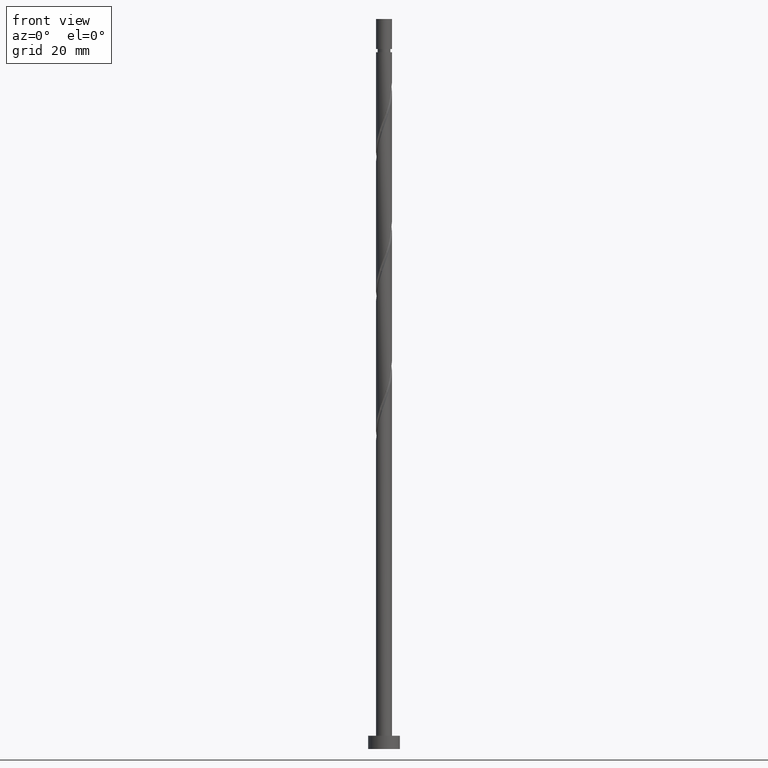
[diagram: clean part render]
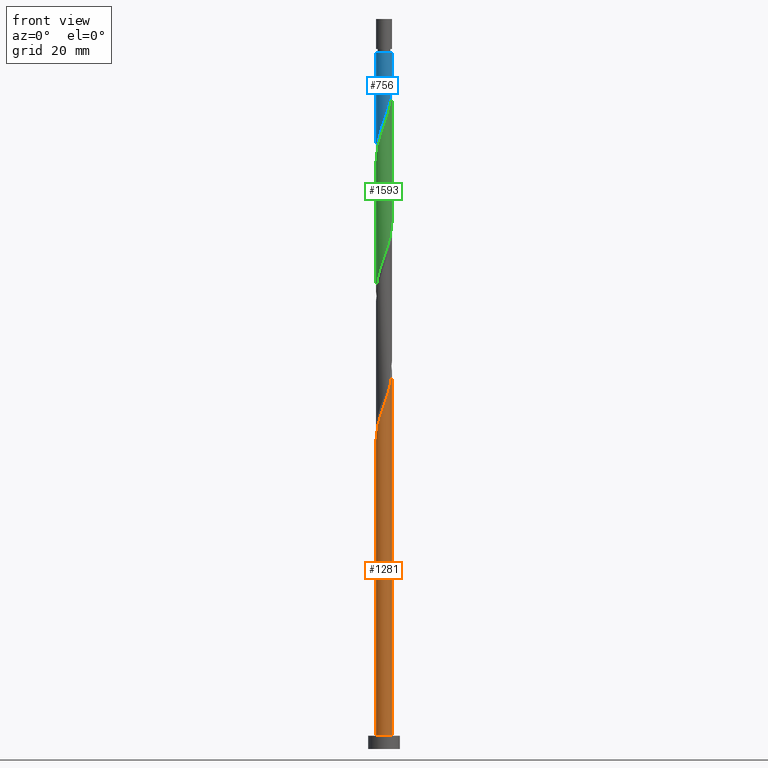
[diagram: same view with three faces highlighted in distinct colors, each labeled with its STEP entity id]
A machine part, front view with three faces highlighted in distinct colors.
Their STEP definitions:

[orange] entity #1281 — the highlighted cylindrical surface (edge-blend (fillet) strip) has radius 3 mm, axis along (-0, -0, -1).
#6 = EDGE_CURVE ( 'NONE', #752, #224, #465, .T. ) ;
#47 = CARTESIAN_POINT ( 'NONE',  ( -2.185491920847155267, -2.082758216016309838, 122.7794641503445519 ) ) ;
#55 = CARTESIAN_POINT ( 'NONE',  ( 0.9282509055702992118, -2.872735104178516075, 132.1544641503445234 ) ) ;
#62 = CARTESIAN_POINT ( 'NONE',  ( -3.000000000000004441, -0.3015113445777637957, 117.2557181514020641 ) ) ;
#102 = CARTESIAN_POINT ( 'NONE',  ( 3.000000000000004441, -0.03609869149916286601, 142.5670843842134730 ) ) ;
#192 = CARTESIAN_POINT ( 'NONE',  ( -0.07218693100826442666, -2.999131382082425468, 129.3419641503445803 ) ) ;
#224 = VERTEX_POINT ( 'NONE', #1802 ) ;
#232 = DIRECTION ( 'NONE',  ( 0.000000000000000000, 0.000000000000000000, 1.000000000000000000 ) ) ;
#243 = CARTESIAN_POINT ( 'NONE',  ( 0.000000000000000000, 0.000000000000000000, 5.000000000000000000 ) ) ;
#250 = CARTESIAN_POINT ( 'NONE',  ( -3.000000000000000444, 0.000000000000000000, 275.0000000000000000 ) ) ;
#321 = CARTESIAN_POINT ( 'NONE',  ( -2.594154378914896419, -1.544221415739432723, 120.9044641503445376 ) ) ;
#343 = CARTESIAN_POINT ( 'NONE',  ( -2.733444741546707579, -1.236236160654866634, 119.9669641503445803 ) ) ;
#351 = CARTESIAN_POINT ( 'NONE',  ( -3.000000000000005329, 4.253845453634912213E-16, 116.4174470724384918 ) ) ;
#382 = DIRECTION ( 'NONE',  ( 1.000000000000000000, 0.000000000000000000, 0.000000000000000000 ) ) ;
#415 = VERTEX_POINT ( 'NONE', #1701 ) ;
#439 = EDGE_LOOP ( 'NONE', ( #1056, #1351, #1287, #934 ) ) ;
#465 = LINE ( 'NONE', #783, #1273 ) ;
#466 = CARTESIAN_POINT ( 'NONE',  ( 2.082758216016309838, -2.185491920847155267, 135.9044641503445234 ) ) ;
#485 = CARTESIAN_POINT ( 'NONE',  ( -1.926365846447889885, -2.299807519258761701, 123.7169641503445661 ) ) ;
#525 = CARTESIAN_POINT ( 'NONE',  ( 3.000000000000005329, -8.433062039662193626E-16, 142.6674470724385344 ) ) ;
#548 = CARTESIAN_POINT ( 'NONE',  ( 2.990997868343356902, -0.4101078809741744990, 141.5294641503445803 ) ) ;
#568 = LINE ( 'NONE', #250, #1507 ) ;
#593 = CYLINDRICAL_SURFACE ( 'NONE', #855, 3.000000000000000444 ) ;
#606 = EDGE_CURVE ( 'NONE', #1149, #415, #568, .T. ) ;
#665 = CARTESIAN_POINT ( 'NONE',  ( 1.544221415739432501, -2.594154378914896419, 134.0294641503445234 ) ) ;
#697 = CARTESIAN_POINT ( 'NONE',  ( 2.999131382082425468, -0.07218693100826460707, 142.4669641503446087 ) ) ;
#710 = CARTESIAN_POINT ( 'NONE',  ( 2.907873793385206351, -0.7377465701333739689, 140.5919641503445519 ) ) ;
#752 = VERTEX_POINT ( 'NONE', #525 ) ;
#753 = CARTESIAN_POINT ( 'NONE',  ( 0.000000000000000000, 0.000000000000000000, 275.0000000000000000 ) ) ;
#766 = AXIS2_PLACEMENT_3D ( 'NONE', #243, #232, #382 ) ;
#783 = CARTESIAN_POINT ( 'NONE',  ( 3.000000000000000444, 3.673940397442060361E-16, 275.0000000000000000 ) ) ;
#784 = CARTESIAN_POINT ( 'NONE',  ( -2.872735104178516075, -0.9282509055702994338, 119.0294641503445376 ) ) ;
#855 = AXIS2_PLACEMENT_3D ( 'NONE', #753, #912, #1047 ) ;
#896 = CIRCLE ( 'NONE', #766, 3.000000000000000444 ) ;
#912 = DIRECTION ( 'NONE',  ( -0.000000000000000000, -0.000000000000000000, -1.000000000000000000 ) ) ;
#934 = ORIENTED_EDGE ( 'NONE', *, *, #1891, .T. ) ;
#940 = CARTESIAN_POINT ( 'NONE',  ( -0.4101078809741744990, -2.990997868343356902, 128.4044641503445519 ) ) ;
#954 = CARTESIAN_POINT ( 'NONE',  ( -1.065385259292573217, -2.824749718427055800, 126.5294641503445234 ) ) ;
#963 = CARTESIAN_POINT ( 'NONE',  ( -2.940000000000004832, -0.5969924622639728451, 118.0919641503445519 ) ) ;
#984 = CARTESIAN_POINT ( 'NONE',  ( 2.824749718427055800, -1.065385259292573217, 139.6544641503445234 ) ) ;
#1019 =( BOUNDED_CURVE ( )  B_SPLINE_CURVE ( 2, ( #351, #62, #963, #784, #343, #321, #1236, #47, #485, #1090, #1525, #954, #1532, #940, #192, #1244, #1829, #55, #1546, #665, #1261, #466, #1444, #1883, #1584, #984, #710, #548, #697, #102, #1420 ),
 .UNSPECIFIED., .F., .T. ) 
 B_SPLINE_CURVE_WITH_KNOTS ( ( 3, 2, 2, 2, 2, 2, 2, 2, 2, 2, 2, 2, 2, 2, 2, 3 ),
 ( 0.05453034012992208357, 0.06250000000000000000, 0.07142857142857139685, 0.08035714285714290472, 0.08928571428571430157, 0.09821428571428569843, 0.1071428571428570953, 0.1160714285714286031, 0.1250000000000000000, 0.1339285714285713969, 0.1428571428571429047, 0.1517857142857143016, 0.1607142857142856984, 0.1696428571428570953, 0.1785714285714286031, 0.1795303401299223334 ),
 .UNSPECIFIED. ) 
 CURVE ( )  GEOMETRIC_REPRESENTATION_ITEM ( )  RATIONAL_B_SPLINE_CURVE ( ( 0.9079949616362126275, 0.9039886423360758982, 0.9090909090909424783, 0.9033747362666175729, 0.9090909090909424783, 0.9033747362666175729, 0.9090909090909424783, 0.9033747362666175729, 0.9090909090909424783, 0.9033747362666175729, 0.9090909090909424783, 0.9033747362666175729, 0.9090909090909424783, 0.9033747362666175729, 0.9090909090909424783, 0.9033747362666175729, 0.9090909090909424783, 0.9033747362666175729, 0.9090909090909424783, 0.9033747362666175729, 0.9090909090909424783, 0.9033747362666175729, 0.9090909090909424783, 0.9033747362666175729, 0.9090909090909424783, 0.9033747362666175729, 0.9090909090909424783, 0.9033747362666175729, 0.9090909090909424783, 0.9084770030214841530, 0.9079949616362124054 ) ) 
 REPRESENTATION_ITEM ( '' )  );
#1028 = FACE_OUTER_BOUND ( 'NONE', #439, .T. ) ;
#1047 = DIRECTION ( 'NONE',  ( -1.000000000000000000, 0.000000000000000000, 0.000000000000000000 ) ) ;
#1056 = ORIENTED_EDGE ( 'NONE', *, *, #6, .F. ) ;
#1090 = CARTESIAN_POINT ( 'NONE',  ( -1.667239772048623392, -2.516856822501209567, 124.6544641503445234 ) ) ;
#1149 = VERTEX_POINT ( 'NONE', #1720 ) ;
#1203 = DIRECTION ( 'NONE',  ( -0.000000000000000000, -0.000000000000000000, -1.000000000000000000 ) ) ;
#1236 = CARTESIAN_POINT ( 'NONE',  ( -2.389823149881026065, -1.813489815877872280, 121.8419641503445519 ) ) ;
#1244 = CARTESIAN_POINT ( 'NONE',  ( 0.2657340189576455902, -3.007264895821491812, 130.2794641503445234 ) ) ;
#1261 = CARTESIAN_POINT ( 'NONE',  ( 1.813489815877872058, -2.389823149881026065, 134.9669641503445234 ) ) ;
#1273 = VECTOR ( 'NONE', #1203, 1000.000000000000000 ) ;
#1281 = ADVANCED_FACE ( 'NONE', ( #1028 ), #593, .T. ) ;
#1287 = ORIENTED_EDGE ( 'NONE', *, *, #606, .T. ) ;
#1351 = ORIENTED_EDGE ( 'NONE', *, *, #1718, .F. ) ;
#1420 = CARTESIAN_POINT ( 'NONE',  ( 3.000000000000005329, -8.433062039662194613E-16, 142.6674470724385344 ) ) ;
#1444 = CARTESIAN_POINT ( 'NONE',  ( 2.299807519258761257, -1.926365846447889885, 136.8419641503445803 ) ) ;
#1507 = VECTOR ( 'NONE', #1892, 1000.000000000000000 ) ;
#1525 = CARTESIAN_POINT ( 'NONE',  ( -1.366312515670598415, -2.670803270464133128, 125.5919641503445661 ) ) ;
#1532 = CARTESIAN_POINT ( 'NONE',  ( -0.7377465701333737469, -2.907873793385206351, 127.4669641503445519 ) ) ;
#1546 = CARTESIAN_POINT ( 'NONE',  ( 1.236236160654866634, -2.733444741546707579, 133.0919641503445803 ) ) ;
#1584 = CARTESIAN_POINT ( 'NONE',  ( 2.670803270464133128, -1.366312515670599081, 138.7169641503446087 ) ) ;
#1701 = CARTESIAN_POINT ( 'NONE',  ( -3.000000000000000444, 0.000000000000000000, 5.000000000000000000 ) ) ;
#1718 = EDGE_CURVE ( 'NONE', #1149, #752, #1019, .T. ) ;
#1720 = CARTESIAN_POINT ( 'NONE',  ( -3.000000000000005329, 4.253845453634912213E-16, 116.4174470724384918 ) ) ;
#1802 = CARTESIAN_POINT ( 'NONE',  ( 3.000000000000000444, 3.673940397442060361E-16, 5.000000000000000000 ) ) ;
#1829 = CARTESIAN_POINT ( 'NONE',  ( 0.5969924622639726230, -2.940000000000004832, 131.2169641503445234 ) ) ;
#1883 = CARTESIAN_POINT ( 'NONE',  ( 2.516856822501209567, -1.667239772048623614, 137.7794641503445519 ) ) ;
#1891 = EDGE_CURVE ( 'NONE', #415, #224, #896, .T. ) ;
#1892 = DIRECTION ( 'NONE',  ( -0.000000000000000000, -0.000000000000000000, -1.000000000000000000 ) ) ;

[blue] entity #756 — the highlighted cylindrical surface (edge-blend (fillet) strip) has radius 3 mm, axis along (-0, -0, -1).
#7 = CARTESIAN_POINT ( 'NONE',  ( 2.185491920847151714, -2.082758216016308506, 244.6544641503445803 ) ) ;
#36 = CARTESIAN_POINT ( 'NONE',  ( -3.000000000000000000, -0.03609869149917129677, 224.8668439164756592 ) ) ;
#66 =( BOUNDED_CURVE ( )  B_SPLINE_CURVE ( 2, ( #1709, #1514, #1817, #482, #470, #454, #1635, #7, #1500, #780, #328, #1070, #1529, #167, #1061, #796, #1647, #639, #1254, #1109, #203, #679, #1118, #668, #1848, #527, #976, #1640, #877, #36, #632 ),
 .UNSPECIFIED., .F., .T. ) 
 B_SPLINE_CURVE_WITH_KNOTS ( ( 3, 2, 2, 2, 2, 2, 2, 2, 2, 2, 2, 2, 2, 2, 2, 3 ),
 ( 0.3045303401299219725, 0.3125000000000000000, 0.3214285714285714524, 0.3303571428571428492, 0.3392857142857143016, 0.3482142857142856984, 0.3571428571428571508, 0.3660714285714285476, 0.3750000000000000000, 0.3839285714285714524, 0.3928571428571428492, 0.4017857142857143016, 0.4107142857142856984, 0.4196428571428571508, 0.4285714285714285476, 0.4295303401299220281 ),
 .UNSPECIFIED. ) 
 CURVE ( )  GEOMETRIC_REPRESENTATION_ITEM ( )  RATIONAL_B_SPLINE_CURVE ( ( 0.9079949616362069653, 0.9039886423360697920, 0.9090909090909368162, 0.9033747362666115777, 0.9090909090909368162, 0.9033747362666115777, 0.9090909090909368162, 0.9033747362666115777, 0.9090909090909368162, 0.9033747362666115777, 0.9090909090909368162, 0.9033747362666115777, 0.9090909090909368162, 0.9033747362666115777, 0.9090909090909368162, 0.9033747362666115777, 0.9090909090909368162, 0.9033747362666115777, 0.9090909090909368162, 0.9033747362666115777, 0.9090909090909368162, 0.9033747362666115777, 0.9090909090909368162, 0.9033747362666115777, 0.9090909090909368162, 0.9033747362666115777, 0.9090909090909368162, 0.9033747362666115777, 0.9090909090909368162, 0.9084770030214786019, 0.9079949616362068543 ) ) 
 REPRESENTATION_ITEM ( '' )  );
#84 = ORIENTED_EDGE ( 'NONE', *, *, #597, .T. ) ;
#133 = VERTEX_POINT ( 'NONE', #625 ) ;
#167 = CARTESIAN_POINT ( 'NONE',  ( 0.4101078809741727782, -2.990997868343352906, 239.0294641503445803 ) ) ;
#203 = CARTESIAN_POINT ( 'NONE',  ( -1.813489815877870504, -2.389823149881022069, 232.4669641503445519 ) ) ;
#207 = DIRECTION ( 'NONE',  ( -1.000000000000000000, 0.000000000000000000, 0.000000000000000000 ) ) ;
#254 = ORIENTED_EDGE ( 'NONE', *, *, #835, .F. ) ;
#274 = LINE ( 'NONE', #426, #340 ) ;
#284 = VERTEX_POINT ( 'NONE', #320 ) ;
#320 = CARTESIAN_POINT ( 'NONE',  ( 3.000000000000000000, -1.903036123994578005E-16, 251.0164812282506546 ) ) ;
#328 = CARTESIAN_POINT ( 'NONE',  ( 1.366312515670595085, -2.670803270464130019, 241.8419641503444382 ) ) ;
#340 = VECTOR ( 'NONE', #924, 1000.000000000000000 ) ;
#408 = DIRECTION ( 'NONE',  ( -0.000000000000000000, -0.000000000000000000, -1.000000000000000000 ) ) ;
#426 = CARTESIAN_POINT ( 'NONE',  ( 3.000000000000000444, 3.673940397442060361E-16, 275.0000000000000000 ) ) ;
#454 = CARTESIAN_POINT ( 'NONE',  ( 2.594154378914893755, -1.544221415739432057, 246.5294641503445803 ) ) ;
#470 = CARTESIAN_POINT ( 'NONE',  ( 2.733444741546703138, -1.236236160654866190, 247.4669641503445234 ) ) ;
#482 = CARTESIAN_POINT ( 'NONE',  ( 2.872735104178513410, -0.9282509055702995449, 248.4044641503445519 ) ) ;
#527 = CARTESIAN_POINT ( 'NONE',  ( -2.824749718427052692, -1.065385259292570552, 227.7794641503445803 ) ) ;
#538 = VERTEX_POINT ( 'NONE', #1242 ) ;
#539 = AXIS2_PLACEMENT_3D ( 'NONE', #1283, #408, #207 ) ;
#587 = CARTESIAN_POINT ( 'NONE',  ( -3.000000000000000444, 0.000000000000000000, 275.0000000000000000 ) ) ;
#597 = EDGE_CURVE ( 'NONE', #1914, #538, #1596, .T. ) ;
#604 = CIRCLE ( 'NONE', #698, 2.999999999999980460 ) ;
#625 = CARTESIAN_POINT ( 'NONE',  ( 2.999999999999980460, 3.673940397442048035E-16, 262.4669641503445519 ) ) ;
#632 = CARTESIAN_POINT ( 'NONE',  ( -3.000000000000000444, 4.056078954474719239E-15, 224.7664812282505693 ) ) ;
#639 = CARTESIAN_POINT ( 'NONE',  ( -0.9282509055702994338, -2.872735104178513410, 235.2794641503445234 ) ) ;
#668 = CARTESIAN_POINT ( 'NONE',  ( -2.516856822501207791, -1.667239772048620283, 229.6544641503445519 ) ) ;
#679 = CARTESIAN_POINT ( 'NONE',  ( -2.082758216016308506, -2.185491920847151714, 231.5294641503444950 ) ) ;
#698 = AXIS2_PLACEMENT_3D ( 'NONE', #825, #1410, #1124 ) ;
#738 = CARTESIAN_POINT ( 'NONE',  ( -2.999999999999980460, 0.000000000000000000, 262.4669641503445519 ) ) ;
#740 = EDGE_LOOP ( 'NONE', ( #837, #1670, #84, #254 ) ) ;
#756 = ADVANCED_FACE ( 'NONE', ( #1889 ), #1161, .T. ) ;
#780 = CARTESIAN_POINT ( 'NONE',  ( 1.667239772048620283, -2.516856822501207791, 242.7794641503445519 ) ) ;
#796 = CARTESIAN_POINT ( 'NONE',  ( -0.2657340189576463674, -3.007264895821488260, 237.1544641503445519 ) ) ;
#825 = CARTESIAN_POINT ( 'NONE',  ( 0.000000000000000000, 0.000000000000000000, 262.4669641503445519 ) ) ;
#835 = EDGE_CURVE ( 'NONE', #284, #538, #66, .T. ) ;
#837 = ORIENTED_EDGE ( 'NONE', *, *, #1553, .F. ) ;
#877 = CARTESIAN_POINT ( 'NONE',  ( -2.999131382082420583, -0.07218693100826335807, 224.9669641503444950 ) ) ;
#924 = DIRECTION ( 'NONE',  ( -0.000000000000000000, -0.000000000000000000, -1.000000000000000000 ) ) ;
#976 = CARTESIAN_POINT ( 'NONE',  ( -2.907873793385203243, -0.7377465701333718595, 226.8419641503445803 ) ) ;
#1061 = CARTESIAN_POINT ( 'NONE',  ( 0.07218693100826327480, -2.999131382082420583, 238.0919641503444950 ) ) ;
#1070 = CARTESIAN_POINT ( 'NONE',  ( 1.065385259292570552, -2.824749718427052692, 240.9044641503445803 ) ) ;
#1109 = CARTESIAN_POINT ( 'NONE',  ( -1.544221415739432057, -2.594154378914893755, 233.4044641503445803 ) ) ;
#1118 = CARTESIAN_POINT ( 'NONE',  ( -2.299807519258758148, -1.926365846447885222, 230.5919641503445803 ) ) ;
#1124 = DIRECTION ( 'NONE',  ( -1.000000000000000000, 0.000000000000000000, 0.000000000000000000 ) ) ;
#1161 = CYLINDRICAL_SURFACE ( 'NONE', #539, 3.000000000000000444 ) ;
#1242 = CARTESIAN_POINT ( 'NONE',  ( -3.000000000000000444, 4.056078954474719239E-15, 224.7664812282505409 ) ) ;
#1254 = CARTESIAN_POINT ( 'NONE',  ( -1.236236160654865524, -2.733444741546703138, 234.3419641503445519 ) ) ;
#1283 = CARTESIAN_POINT ( 'NONE',  ( 0.000000000000000000, 0.000000000000000000, 275.0000000000000000 ) ) ;
#1410 = DIRECTION ( 'NONE',  ( -0.000000000000000000, -0.000000000000000000, -1.000000000000000000 ) ) ;
#1430 = DIRECTION ( 'NONE',  ( -0.000000000000000000, -0.000000000000000000, -1.000000000000000000 ) ) ;
#1500 = CARTESIAN_POINT ( 'NONE',  ( 1.926365846447885222, -2.299807519258758592, 243.7169641503445234 ) ) ;
#1514 = CARTESIAN_POINT ( 'NONE',  ( 3.000000000000000888, -0.3015113445777622414, 250.1782101492870254 ) ) ;
#1529 = CARTESIAN_POINT ( 'NONE',  ( 0.7377465701333717485, -2.907873793385203243, 239.9669641503445803 ) ) ;
#1553 = EDGE_CURVE ( 'NONE', #133, #284, #274, .T. ) ;
#1596 = LINE ( 'NONE', #587, #1809 ) ;
#1635 = CARTESIAN_POINT ( 'NONE',  ( 2.389823149881022069, -1.813489815877870504, 245.5919641503445234 ) ) ;
#1640 = CARTESIAN_POINT ( 'NONE',  ( -2.990997868343352906, -0.4101078809741730002, 225.9044641503445519 ) ) ;
#1647 = CARTESIAN_POINT ( 'NONE',  ( -0.5969924622639728451, -2.940000000000000835, 236.2169641503445519 ) ) ;
#1670 = ORIENTED_EDGE ( 'NONE', *, *, #1908, .T. ) ;
#1709 = CARTESIAN_POINT ( 'NONE',  ( 3.000000000000000000, -1.903036123994578005E-16, 251.0164812282506546 ) ) ;
#1809 = VECTOR ( 'NONE', #1430, 1000.000000000000000 ) ;
#1817 = CARTESIAN_POINT ( 'NONE',  ( 2.940000000000000835, -0.5969924622639731782, 249.3419641503445519 ) ) ;
#1848 = CARTESIAN_POINT ( 'NONE',  ( -2.670803270464130019, -1.366312515670595751, 228.7169641503445234 ) ) ;
#1889 = FACE_OUTER_BOUND ( 'NONE', #740, .T. ) ;
#1908 = EDGE_CURVE ( 'NONE', #133, #1914, #604, .T. ) ;
#1914 = VERTEX_POINT ( 'NONE', #738 ) ;

[green] entity #1593 — the highlighted cylindrical surface (edge-blend (fillet) strip) has radius 3 mm, axis along (-0, -0, -1).
#54 = CARTESIAN_POINT ( 'NONE',  ( -0.7377465701333737469, -2.907873793385206351, 232.4669641503446087 ) ) ;
#61 = CARTESIAN_POINT ( 'NONE',  ( -3.000000000000004441, -3.294864504876865949E-15, 221.4174470724384776 ) ) ;
#72 = CARTESIAN_POINT ( 'NONE',  ( -0.07218693100826442666, -2.999131382082425468, 234.3419641503445803 ) ) ;
#80 = CARTESIAN_POINT ( 'NONE',  ( 3.000000000000005329, -0.03609869149917228903, 247.5670843842134161 ) ) ;
#124 = CARTESIAN_POINT ( 'NONE',  ( -3.000000000000000444, 0.000000000000000000, 275.0000000000000000 ) ) ;
#144 = DIRECTION ( 'NONE',  ( -0.000000000000000000, -0.000000000000000000, -1.000000000000000000 ) ) ;
#209 = CARTESIAN_POINT ( 'NONE',  ( -2.185491920847155267, -2.082758216016309838, 227.7794641503445234 ) ) ;
#221 = CARTESIAN_POINT ( 'NONE',  ( -2.594154378914896419, -1.544221415739432723, 225.9044641503445519 ) ) ;
#227 = CARTESIAN_POINT ( 'NONE',  ( 1.065385259292570552, -2.824749718427052692, 188.4044641503445519 ) ) ;
#231 = CARTESIAN_POINT ( 'NONE',  ( 2.299807519258761257, -1.926365846447889885, 241.8419641503445519 ) ) ;
#257 = CARTESIAN_POINT ( 'NONE',  ( 2.594154378914893755, -1.544221415739432057, 194.0294641503445519 ) ) ;
#260 =( BOUNDED_CURVE ( )  B_SPLINE_CURVE ( 2, ( #1334, #1778, #1918, #296, #1888, #257, #1312, #1062, #508, #491, #951, #227, #848, #1415, #704, #1643, #915, #1549, #1206, #308, #1335, #1569, #1422, #1590, #626, #1224, #1814, #322, #1190, #1468, #1121 ),
 .UNSPECIFIED., .F., .T. ) 
 B_SPLINE_CURVE_WITH_KNOTS ( ( 3, 2, 2, 2, 2, 2, 2, 2, 2, 2, 2, 2, 2, 2, 2, 3 ),
 ( 0.5545303401299219725, 0.5625000000000000000, 0.5714285714285713969, 0.5803571428571429047, 0.5892857142857143016, 0.5982142857142856984, 0.6071428571428570953, 0.6160714285714286031, 0.6250000000000000000, 0.6339285714285713969, 0.6428571428571429047, 0.6517857142857143016, 0.6607142857142856984, 0.6696428571428570953, 0.6785714285714286031, 0.6795303401299221946 ),
 .UNSPECIFIED. ) 
 CURVE ( )  GEOMETRIC_REPRESENTATION_ITEM ( )  RATIONAL_B_SPLINE_CURVE ( ( 0.9079949616362070763, 0.9039886423360699030, 0.9090909090909368162, 0.9033747362666115777, 0.9090909090909368162, 0.9033747362666115777, 0.9090909090909368162, 0.9033747362666115777, 0.9090909090909368162, 0.9033747362666115777, 0.9090909090909368162, 0.9033747362666115777, 0.9090909090909368162, 0.9033747362666115777, 0.9090909090909368162, 0.9033747362666115777, 0.9090909090909368162, 0.9033747362666115777, 0.9090909090909368162, 0.9033747362666115777, 0.9090909090909368162, 0.9033747362666115777, 0.9090909090909368162, 0.9033747362666115777, 0.9090909090909368162, 0.9033747362666115777, 0.9090909090909368162, 0.9033747362666115777, 0.9090909090909368162, 0.9084770030214784908, 0.9079949616362067433 ) ) 
 REPRESENTATION_ITEM ( '' )  );
#292 = CARTESIAN_POINT ( 'NONE',  ( 3.000000000000000444, 3.673940397442060361E-16, 275.0000000000000000 ) ) ;
#295 = DIRECTION ( 'NONE',  ( -0.000000000000000000, -0.000000000000000000, -1.000000000000000000 ) ) ;
#296 = CARTESIAN_POINT ( 'NONE',  ( 2.872735104178513410, -0.9282509055702995449, 195.9044641503445803 ) ) ;
#305 = ORIENTED_EDGE ( 'NONE', *, *, #459, .F. ) ;
#306 = DIRECTION ( 'NONE',  ( -0.000000000000000000, -0.000000000000000000, -1.000000000000000000 ) ) ;
#308 = CARTESIAN_POINT ( 'NONE',  ( -1.544221415739432057, -2.594154378914893755, 180.9044641503445803 ) ) ;
#322 = CARTESIAN_POINT ( 'NONE',  ( -2.990997868343352906, -0.4101078809741730002, 173.4044641503445519 ) ) ;
#371 = CARTESIAN_POINT ( 'NONE',  ( 2.907873793385206351, -0.7377465701333739689, 245.5919641503446087 ) ) ;
#375 = VECTOR ( 'NONE', #295, 1000.000000000000000 ) ;
#381 = CARTESIAN_POINT ( 'NONE',  ( 2.670803270464133128, -1.366312515670599081, 243.7169641503445803 ) ) ;
#448 = VERTEX_POINT ( 'NONE', #1691 ) ;
#459 = EDGE_CURVE ( 'NONE', #1736, #785, #1624, .T. ) ;
#491 = CARTESIAN_POINT ( 'NONE',  ( 1.667239772048620283, -2.516856822501207791, 190.2794641503445234 ) ) ;
#508 = CARTESIAN_POINT ( 'NONE',  ( 1.926365846447885222, -2.299807519258758592, 191.2169641503445234 ) ) ;
#511 = CARTESIAN_POINT ( 'NONE',  ( -3.000000000000004441, -3.294864504876865949E-15, 221.4174470724384776 ) ) ;
#521 = CARTESIAN_POINT ( 'NONE',  ( 0.9282509055702992118, -2.872735104178516075, 237.1544641503445519 ) ) ;
#534 = CARTESIAN_POINT ( 'NONE',  ( -1.065385259292573217, -2.824749718427055800, 231.5294641503444950 ) ) ;
#626 = CARTESIAN_POINT ( 'NONE',  ( -2.670803270464130019, -1.366312515670595751, 176.2169641503445234 ) ) ;
#664 = CARTESIAN_POINT ( 'NONE',  ( -2.872735104178516075, -0.9282509055702994338, 224.0294641503444950 ) ) ;
#675 = CARTESIAN_POINT ( 'NONE',  ( -1.926365846447889885, -2.299807519258761701, 228.7169641503445803 ) ) ;
#684 = CARTESIAN_POINT ( 'NONE',  ( 2.082758216016309838, -2.185491920847155267, 240.9044641503445234 ) ) ;
#695 = CARTESIAN_POINT ( 'NONE',  ( 1.236236160654866634, -2.733444741546707579, 238.0919641503445234 ) ) ;
#704 = CARTESIAN_POINT ( 'NONE',  ( 0.07218693100826327480, -2.999131382082420583, 185.5919641503445519 ) ) ;
#705 = EDGE_CURVE ( 'NONE', #1736, #1485, #1457, .T. ) ;
#785 = VERTEX_POINT ( 'NONE', #1141 ) ;
#824 = CARTESIAN_POINT ( 'NONE',  ( -1.366312515670598415, -2.670803270464133128, 230.5919641503446371 ) ) ;
#848 = CARTESIAN_POINT ( 'NONE',  ( 0.7377465701333717485, -2.907873793385203243, 187.4669641503445234 ) ) ;
#882 = CARTESIAN_POINT ( 'NONE',  ( -2.999999999999999556, 3.209041307128111581E-16, 172.2664812282505977 ) ) ;
#915 = CARTESIAN_POINT ( 'NONE',  ( -0.5969924622639728451, -2.940000000000000835, 183.7169641503445234 ) ) ;
#949 = AXIS2_PLACEMENT_3D ( 'NONE', #1618, #306, #1479 ) ;
#951 = CARTESIAN_POINT ( 'NONE',  ( 1.366312515670595085, -2.670803270464130019, 189.3419641503445519 ) ) ;
#972 = CARTESIAN_POINT ( 'NONE',  ( -2.733444741546707579, -1.236236160654866634, 224.9669641503445803 ) ) ;
#975 = EDGE_LOOP ( 'NONE', ( #1177, #305, #1548, #1446 ) ) ;
#983 = CARTESIAN_POINT ( 'NONE',  ( 2.999131382082425468, -0.07218693100826460707, 247.4669641503445519 ) ) ;
#1037 = CYLINDRICAL_SURFACE ( 'NONE', #949, 3.000000000000000444 ) ;
#1062 = CARTESIAN_POINT ( 'NONE',  ( 2.185491920847151714, -2.082758216016308506, 192.1544641503445803 ) ) ;
#1066 = EDGE_CURVE ( 'NONE', #448, #1485, #260, .T. ) ;
#1121 = CARTESIAN_POINT ( 'NONE',  ( -2.999999999999999556, 3.209041307128111088E-16, 172.2664812282506261 ) ) ;
#1123 = CARTESIAN_POINT ( 'NONE',  ( 2.824749718427055800, -1.065385259292573217, 244.6544641503444950 ) ) ;
#1133 = VECTOR ( 'NONE', #144, 1000.000000000000000 ) ;
#1135 = CARTESIAN_POINT ( 'NONE',  ( 2.990997868343356902, -0.4101078809741744990, 246.5294641503445519 ) ) ;
#1141 = CARTESIAN_POINT ( 'NONE',  ( 3.000000000000004441, 2.880674289654519495E-15, 247.6674470724384491 ) ) ;
#1177 = ORIENTED_EDGE ( 'NONE', *, *, #1211, .F. ) ;
#1190 = CARTESIAN_POINT ( 'NONE',  ( -2.999131382082420583, -0.07218693100826335807, 172.4669641503445519 ) ) ;
#1206 = CARTESIAN_POINT ( 'NONE',  ( -1.236236160654865524, -2.733444741546703138, 181.8419641503445234 ) ) ;
#1211 = EDGE_CURVE ( 'NONE', #785, #448, #1278, .T. ) ;
#1224 = CARTESIAN_POINT ( 'NONE',  ( -2.824749718427052692, -1.065385259292570552, 175.2794641503445234 ) ) ;
#1249 = CARTESIAN_POINT ( 'NONE',  ( 0.5969924622639726230, -2.940000000000004832, 236.2169641503446087 ) ) ;
#1275 = CARTESIAN_POINT ( 'NONE',  ( -2.940000000000004832, -0.5969924622639728451, 223.0919641503446087 ) ) ;
#1278 = LINE ( 'NONE', #292, #375 ) ;
#1312 = CARTESIAN_POINT ( 'NONE',  ( 2.389823149881022069, -1.813489815877870504, 193.0919641503445803 ) ) ;
#1331 = FACE_OUTER_BOUND ( 'NONE', #975, .T. ) ;
#1334 = CARTESIAN_POINT ( 'NONE',  ( 2.999999999999999556, -6.343453746648592363E-16, 198.5164812282506261 ) ) ;
#1335 = CARTESIAN_POINT ( 'NONE',  ( -1.813489815877870504, -2.389823149881022069, 179.9669641503445234 ) ) ;
#1390 = CARTESIAN_POINT ( 'NONE',  ( -3.000000000000003997, -0.3015113445777679035, 222.2557181514020499 ) ) ;
#1409 = CARTESIAN_POINT ( 'NONE',  ( -0.4101078809741744990, -2.990997868343356902, 233.4044641503445803 ) ) ;
#1415 = CARTESIAN_POINT ( 'NONE',  ( 0.4101078809741727782, -2.990997868343352906, 186.5294641503445803 ) ) ;
#1422 = CARTESIAN_POINT ( 'NONE',  ( -2.299807519258758148, -1.926365846447885222, 178.0919641503445519 ) ) ;
#1446 = ORIENTED_EDGE ( 'NONE', *, *, #1066, .F. ) ;
#1457 = LINE ( 'NONE', #124, #1133 ) ;
#1468 = CARTESIAN_POINT ( 'NONE',  ( -3.000000000000000000, -0.03609869149916689057, 172.3668439164756307 ) ) ;
#1479 = DIRECTION ( 'NONE',  ( -1.000000000000000000, 0.000000000000000000, 0.000000000000000000 ) ) ;
#1485 = VERTEX_POINT ( 'NONE', #882 ) ;
#1548 = ORIENTED_EDGE ( 'NONE', *, *, #705, .T. ) ;
#1549 = CARTESIAN_POINT ( 'NONE',  ( -0.9282509055702994338, -2.872735104178513410, 182.7794641503445519 ) ) ;
#1555 = CARTESIAN_POINT ( 'NONE',  ( -2.389823149881026065, -1.813489815877872280, 226.8419641503445803 ) ) ;
#1565 = CARTESIAN_POINT ( 'NONE',  ( 1.813489815877872058, -2.389823149881026065, 239.9669641503446087 ) ) ;
#1569 = CARTESIAN_POINT ( 'NONE',  ( -2.082758216016308506, -2.185491920847151714, 179.0294641503445519 ) ) ;
#1590 = CARTESIAN_POINT ( 'NONE',  ( -2.516856822501207791, -1.667239772048620283, 177.1544641503445234 ) ) ;
#1593 = ADVANCED_FACE ( 'NONE', ( #1331 ), #1037, .T. ) ;
#1618 = CARTESIAN_POINT ( 'NONE',  ( 0.000000000000000000, 0.000000000000000000, 275.0000000000000000 ) ) ;
#1624 =( BOUNDED_CURVE ( )  B_SPLINE_CURVE ( 2, ( #61, #1390, #1275, #664, #972, #221, #1555, #209, #675, #1862, #824, #534, #54, #1409, #72, #1854, #1249, #521, #695, #1711, #1565, #684, #231, #1834, #381, #1123, #371, #1135, #983, #80, #1724 ),
 .UNSPECIFIED., .F., .T. ) 
 B_SPLINE_CURVE_WITH_KNOTS ( ( 3, 2, 2, 2, 2, 2, 2, 2, 2, 2, 2, 2, 2, 2, 2, 3 ),
 ( 0.5545303401299221946, 0.5625000000000000000, 0.5714285714285713969, 0.5803571428571427937, 0.5892857142857143016, 0.5982142857142856984, 0.6071428571428572063, 0.6160714285714286031, 0.6250000000000000000, 0.6339285714285713969, 0.6428571428571427937, 0.6517857142857143016, 0.6607142857142856984, 0.6696428571428572063, 0.6785714285714286031, 0.6795303401299220836 ),
 .UNSPECIFIED. ) 
 CURVE ( )  GEOMETRIC_REPRESENTATION_ITEM ( )  RATIONAL_B_SPLINE_CURVE ( ( 0.9079949616362124054, 0.9039886423360758982, 0.9090909090909424783, 0.9033747362666175729, 0.9090909090909424783, 0.9033747362666175729, 0.9090909090909424783, 0.9033747362666175729, 0.9090909090909424783, 0.9033747362666175729, 0.9090909090909424783, 0.9033747362666175729, 0.9090909090909424783, 0.9033747362666175729, 0.9090909090909424783, 0.9033747362666175729, 0.9090909090909424783, 0.9033747362666175729, 0.9090909090909424783, 0.9033747362666175729, 0.9090909090909424783, 0.9033747362666175729, 0.9090909090909424783, 0.9033747362666175729, 0.9090909090909424783, 0.9033747362666175729, 0.9090909090909424783, 0.9033747362666175729, 0.9090909090909424783, 0.9084770030214842640, 0.9079949616362126275 ) ) 
 REPRESENTATION_ITEM ( '' )  );
#1643 = CARTESIAN_POINT ( 'NONE',  ( -0.2657340189576463674, -3.007264895821488260, 184.6544641503445234 ) ) ;
#1691 = CARTESIAN_POINT ( 'NONE',  ( 2.999999999999999556, -6.343453746648592363E-16, 198.5164812282506261 ) ) ;
#1711 = CARTESIAN_POINT ( 'NONE',  ( 1.544221415739432501, -2.594154378914896419, 239.0294641503445234 ) ) ;
#1724 = CARTESIAN_POINT ( 'NONE',  ( 3.000000000000004441, 2.880674289654519495E-15, 247.6674470724384491 ) ) ;
#1736 = VERTEX_POINT ( 'NONE', #511 ) ;
#1778 = CARTESIAN_POINT ( 'NONE',  ( 3.000000000000000888, -0.3015113445777603540, 197.6782101492870254 ) ) ;
#1814 = CARTESIAN_POINT ( 'NONE',  ( -2.907873793385203243, -0.7377465701333718595, 174.3419641503445519 ) ) ;
#1834 = CARTESIAN_POINT ( 'NONE',  ( 2.516856822501209567, -1.667239772048623614, 242.7794641503445519 ) ) ;
#1854 = CARTESIAN_POINT ( 'NONE',  ( 0.2657340189576455902, -3.007264895821491812, 235.2794641503444950 ) ) ;
#1862 = CARTESIAN_POINT ( 'NONE',  ( -1.667239772048623392, -2.516856822501209567, 229.6544641503445519 ) ) ;
#1888 = CARTESIAN_POINT ( 'NONE',  ( 2.733444741546703138, -1.236236160654866190, 194.9669641503445519 ) ) ;
#1918 = CARTESIAN_POINT ( 'NONE',  ( 2.940000000000000835, -0.5969924622639731782, 196.8419641503445803 ) ) ;